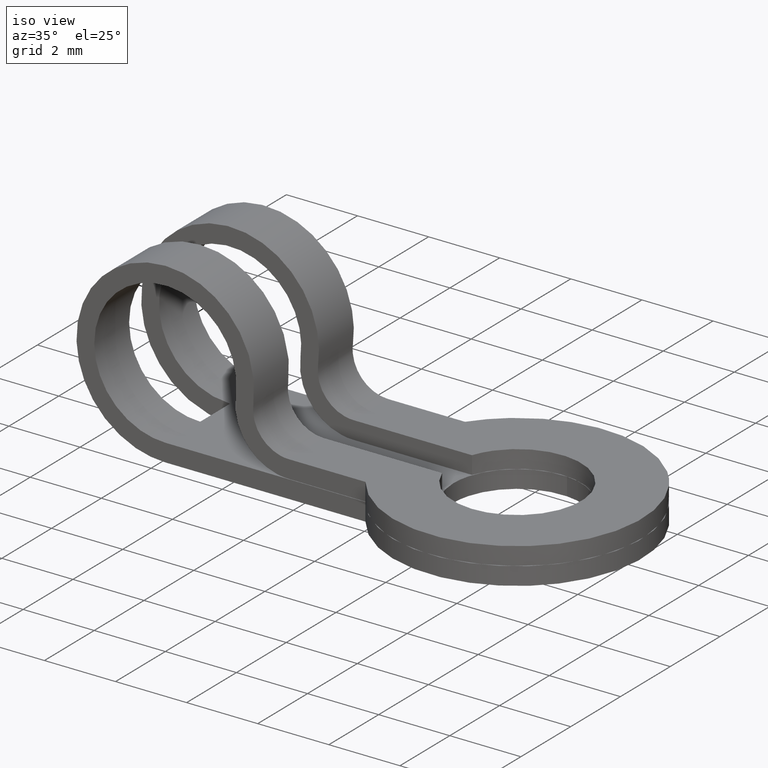
[diagram: clean part render]
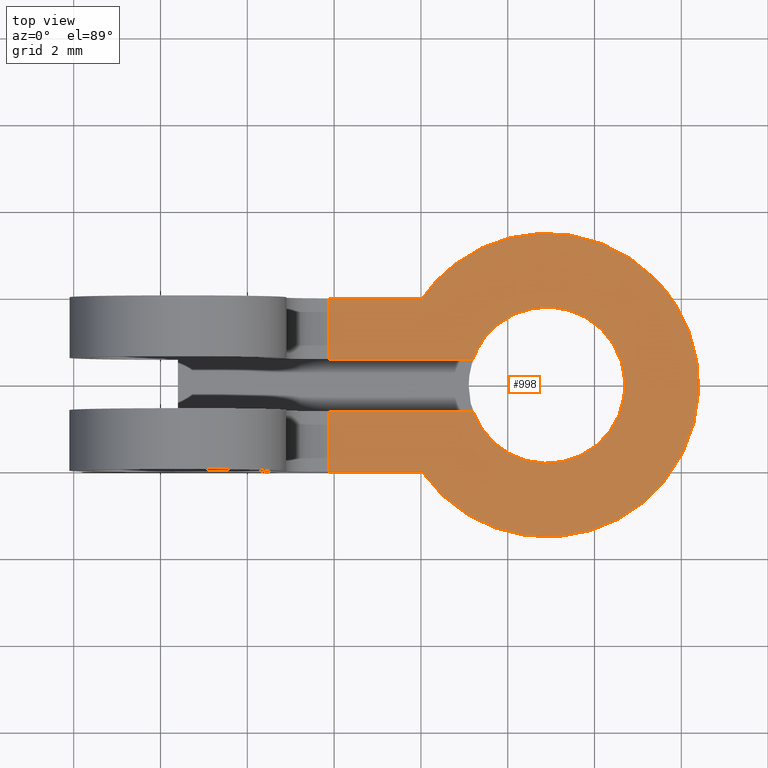
[diagram: tour spotlight — one face highlighted and labeled with its STEP entity id]
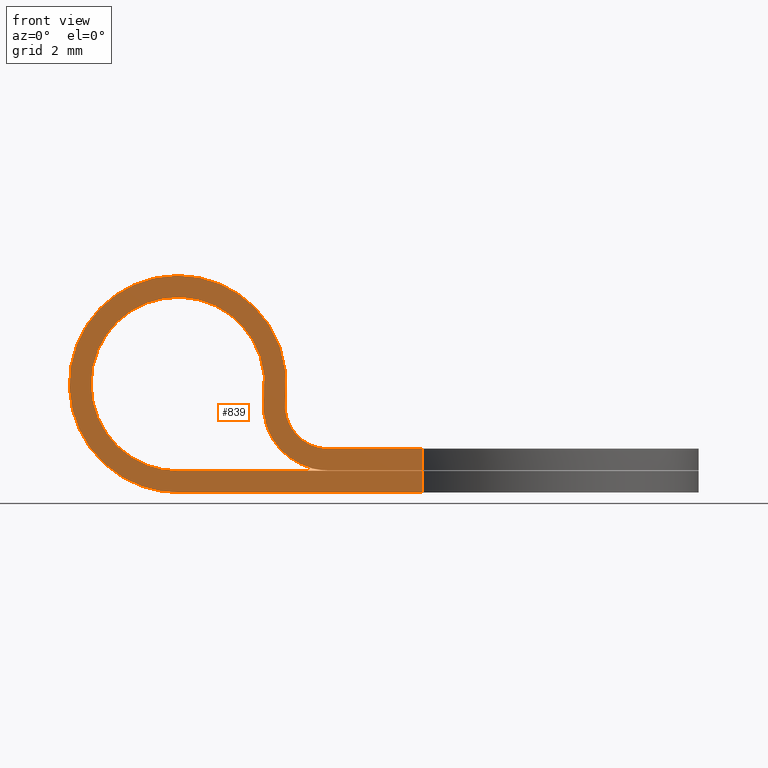
[diagram: tour spotlight — one face highlighted and labeled with its STEP entity id]
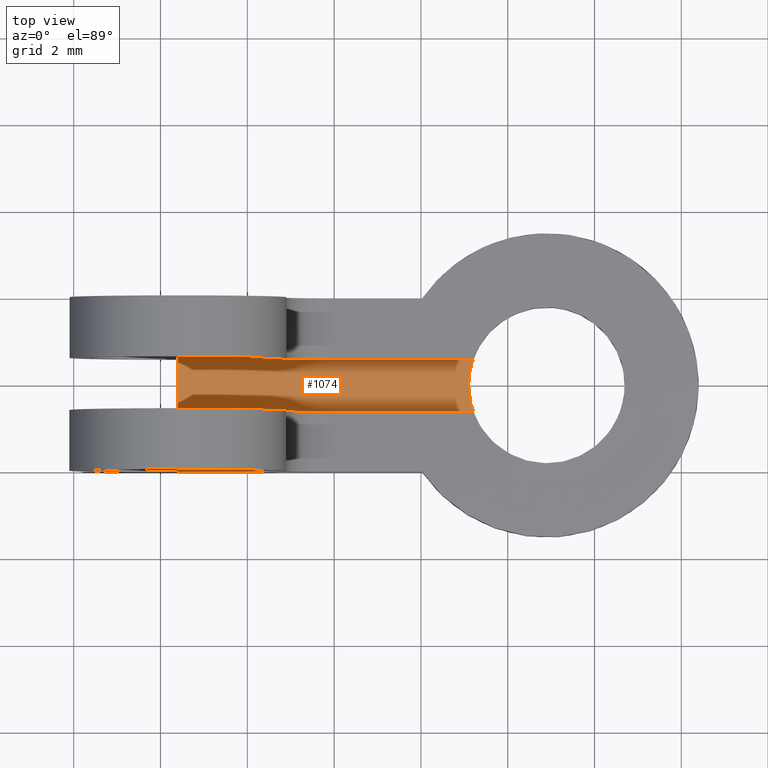
[diagram: tour spotlight — one face highlighted and labeled with its STEP entity id]
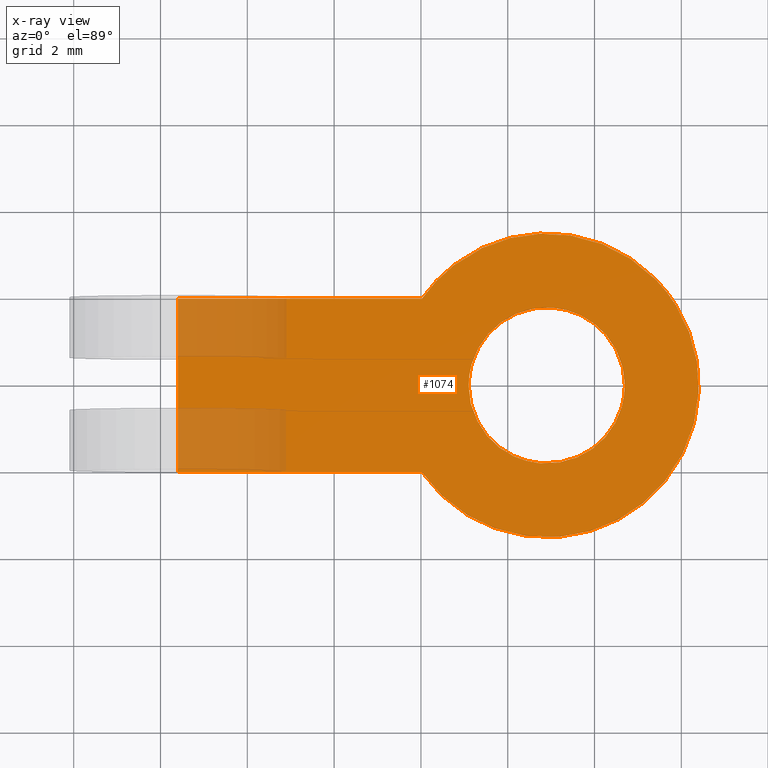
[diagram: x-ray of the same camera — body ghosted, this tour face saturated]
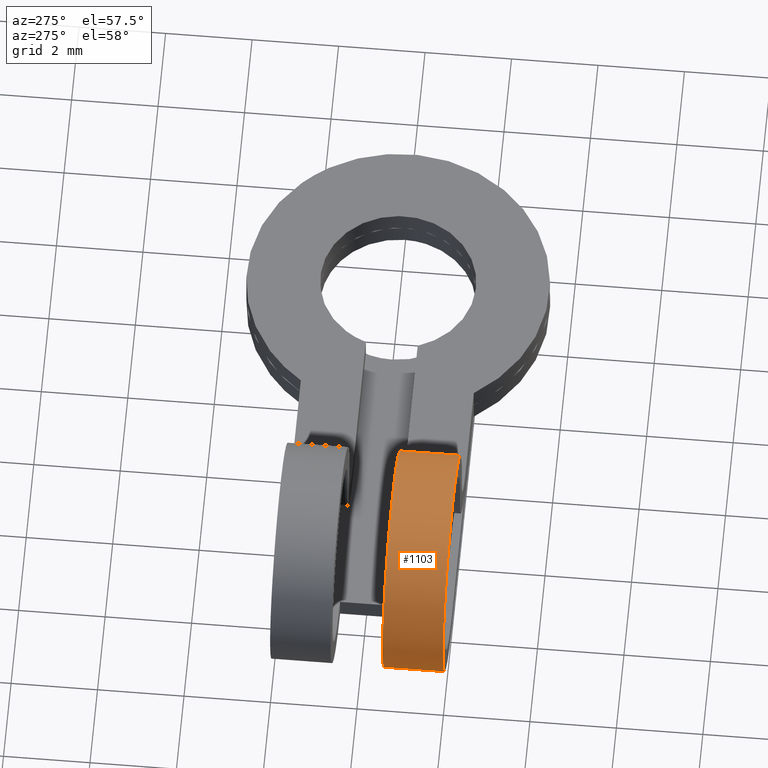
[diagram: tour spotlight — one face highlighted and labeled with its STEP entity id]
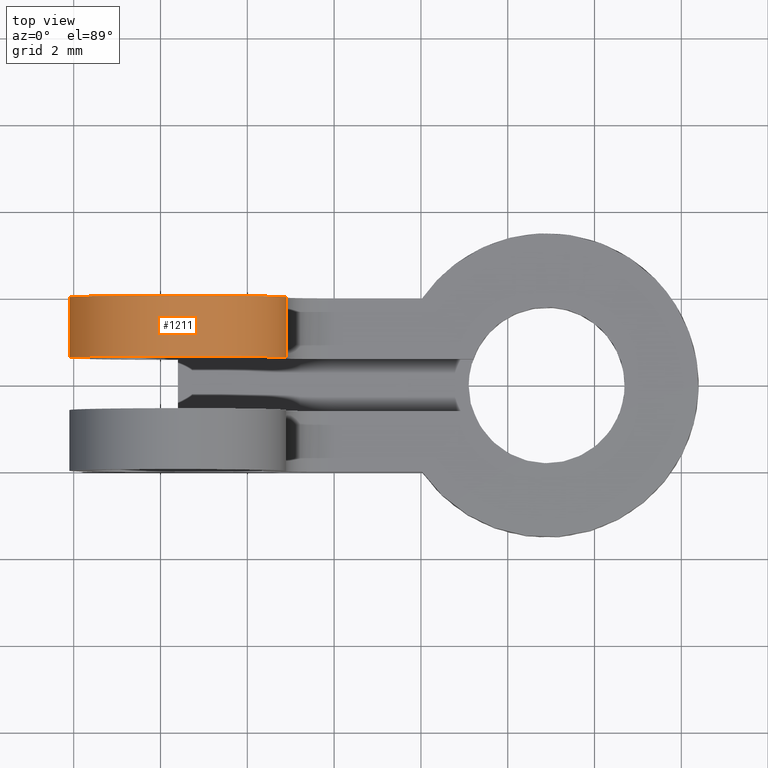
[diagram: tour spotlight — one face highlighted and labeled with its STEP entity id]
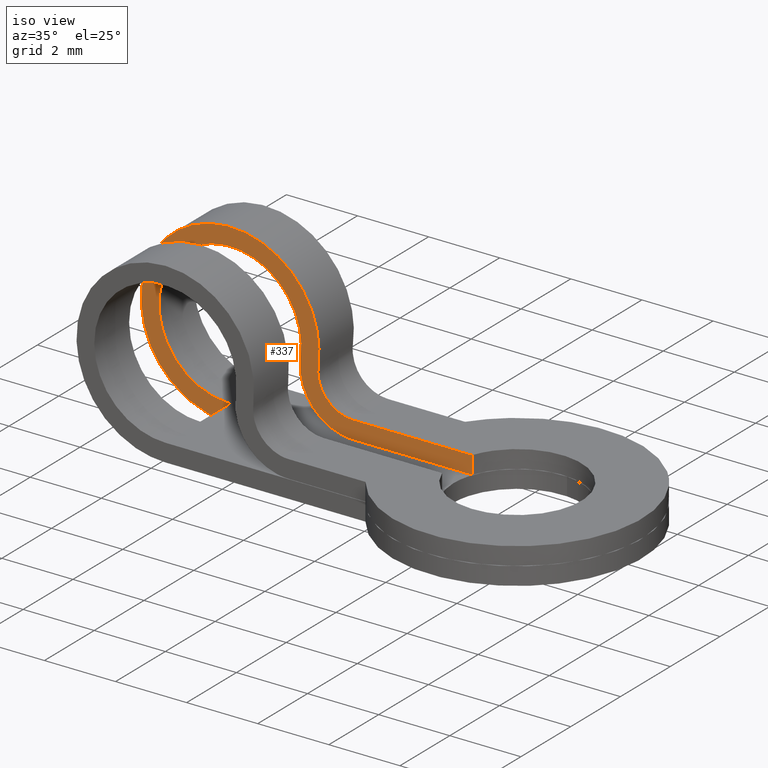
[diagram: tour spotlight — one face highlighted and labeled with its STEP entity id]
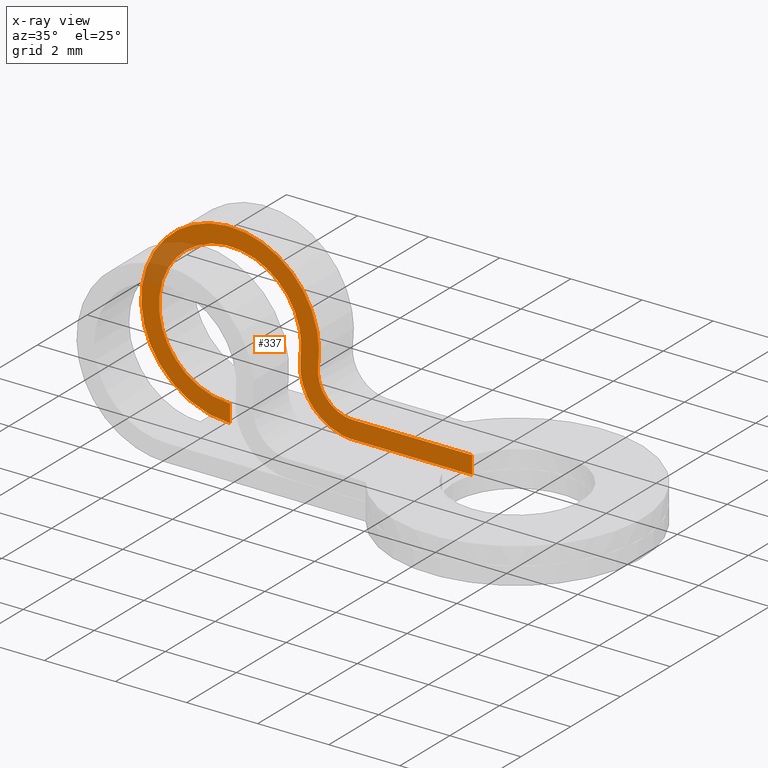
[diagram: x-ray of the same camera — body ghosted, this tour face saturated]
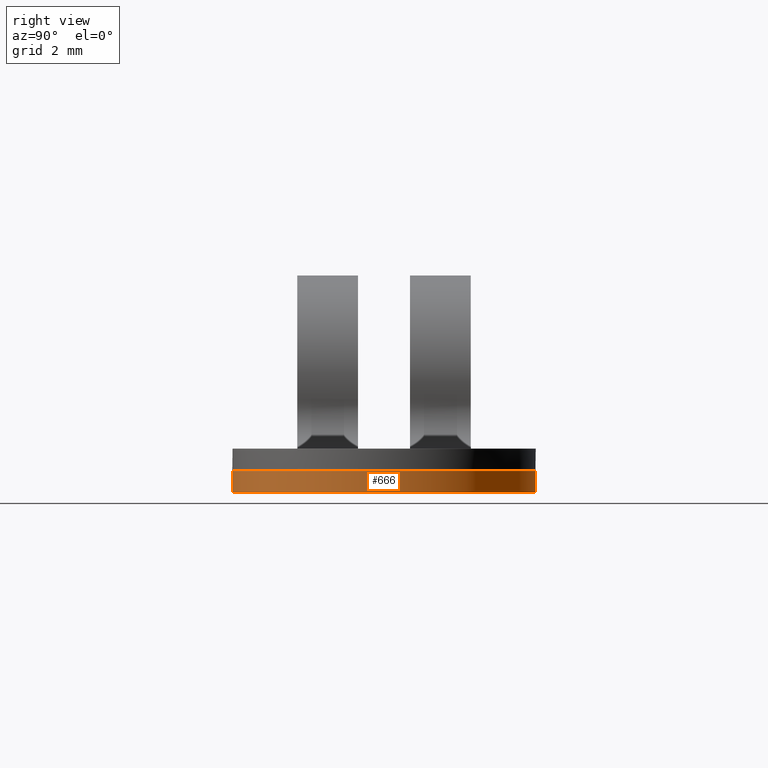
[diagram: tour spotlight — one face highlighted and labeled with its STEP entity id]
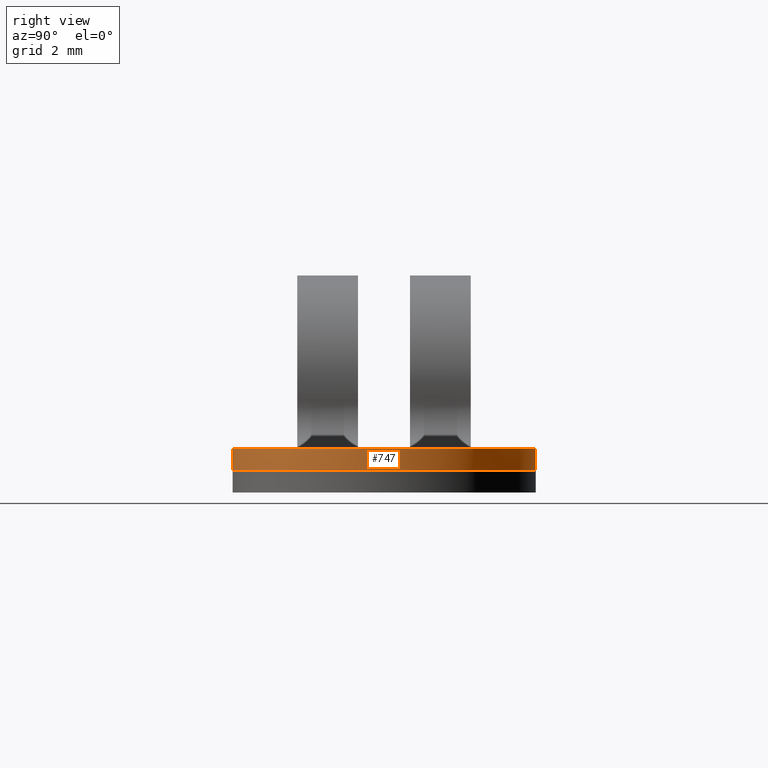
[diagram: tour spotlight — one face highlighted and labeled with its STEP entity id]
A machine part: a face-by-face anatomy tour. The part has 22 B-rep faces; the first image is the clean iso view, then the 8 largest visible faces are spotlighted one at a time (largest first), each with its STEP entity span.

Face 1 — top view, entity #998. In plain terms, the highlighted face is a freeform B-spline surface patch.
Definition (entity closure, byte-faithful):
#285=CARTESIAN_POINT('',(7.202943725152349,0.600000000000156,-1.490000000000000));
#286=VERTEX_POINT('',#285);
#292=CARTESIAN_POINT('',(3.865530262456245,0.600000000000156,-1.490000000000000));
#293=VERTEX_POINT('',#292);
#294=CARTESIAN_POINT('',(3.865530262456245,0.600000000000156,-1.490000000000000));
#295=CARTESIAN_POINT('',(7.202943725152349,0.600000000000156,-1.490000000000000));
#296=QUASI_UNIFORM_CURVE('',1,(#294,#295),.UNSPECIFIED.,.F.,.U.);
#297=EDGE_CURVE('',#293,#286,#296,.T.);
#393=CARTESIAN_POINT('',(3.865530262456245,-0.600000000000045,-1.490000000000000));
#394=VERTEX_POINT('',#393);
#410=CARTESIAN_POINT('',(7.202943725152309,-0.600000000000045,-1.490000000000000));
#411=VERTEX_POINT('',#410);
#412=CARTESIAN_POINT('',(7.202943725152309,-0.600000000000045,-1.490000000000000));
#413=CARTESIAN_POINT('',(3.865530262456245,-0.600000000000045,-1.490000000000000));
#414=QUASI_UNIFORM_CURVE('',1,(#412,#413),.UNSPECIFIED.,.F.,.U.);
#415=EDGE_CURVE('',#411,#394,#414,.T.);
#517=CARTESIAN_POINT('',(7.202943725152303,-0.600000000000048,-1.490000000000000));
#518=CARTESIAN_POINT('',(7.708767123412788,-2.030684619971169,-1.490000000000000));
#519=CARTESIAN_POINT('',(9.204383561706369,-1.774077407376280,-1.490000000000000));
#520=CARTESIAN_POINT('',(10.699999999999998,-1.517470194781383,-1.490000000000000));
#521=CARTESIAN_POINT('',(10.699999999999999,0.0,-1.490000000000000));
#522=CARTESIAN_POINT('',(10.699999999999998,1.517470194781283,-1.490000000000000));
#523=CARTESIAN_POINT('',(9.204383561706484,1.774077407376261,-1.490000000000000));
#524=CARTESIAN_POINT('',(7.708767123412920,2.030684619971247,-1.490000000000000));
#525=CARTESIAN_POINT('',(7.202943725152342,0.600000000000158,-1.490000000000000));
#533=(BOUNDED_CURVE()B_SPLINE_CURVE(2,(#517,#518,#519,#520,#521,#522,#523,#524,#525),.UNSPECIFIED.,.F.,.U.)B_SPLINE_CURVE_WITH_KNOTS((3,2,2,2,3),(0.0,0.250000000000000,0.500000000000000,0.750000000000000,1.0),.UNSPECIFIED.)CURVE()GEOMETRIC_REPRESENTATION_ITEM()RATIONAL_B_SPLINE_CURVE((1.0,0.764559343257864,1.0,0.764559343257864,1.0,0.764559343257864,1.0,0.764559343257864,1.0))REPRESENTATION_ITEM(''));
#534=EDGE_CURVE('',#411,#286,#533,.T.);
#553=CARTESIAN_POINT('',(3.865530262456245,-2.0,-1.490000000000000));
#554=VERTEX_POINT('',#553);
#555=CARTESIAN_POINT('',(3.865530262456245,-0.600000000000045,-1.490000000000000));
#556=CARTESIAN_POINT('',(3.865530262456245,-2.0,-1.490000000000000));
#557=QUASI_UNIFORM_CURVE('',1,(#555,#556),.UNSPECIFIED.,.F.,.U.);
#558=EDGE_CURVE('',#394,#554,#557,.T.);
#689=CARTESIAN_POINT('',(6.027719000000000,-2.0,-1.490000000000000));
#690=VERTEX_POINT('',#689);
#691=CARTESIAN_POINT('',(6.027719000000000,2.000000000000200,-1.490000000000000));
#692=VERTEX_POINT('',#691);
#693=CARTESIAN_POINT('',(6.027719000000000,-2.0,-1.490000000000000));
#694=CARTESIAN_POINT('',(7.496194522466252,-4.108937635332173,-1.490000000000000));
#695=CARTESIAN_POINT('',(9.948097261233096,-3.339384992928441,-1.490000000000000));
#696=CARTESIAN_POINT('',(12.400000000000000,-2.569832350524688,-1.490000000000000));
#697=CARTESIAN_POINT('',(12.400000000000000,0.0,-1.490000000000000));
#698=CARTESIAN_POINT('',(12.400000000000000,2.569832350524561,-1.490000000000000));
#699=CARTESIAN_POINT('',(9.948097261233253,3.339384992928392,-1.490000000000000));
#700=CARTESIAN_POINT('',(7.496194522466445,4.108937635332241,-1.490000000000000));
#701=CARTESIAN_POINT('',(6.027719000000000,2.000000000000200,-1.490000000000000));
#709=(BOUNDED_CURVE()B_SPLINE_CURVE(2,(#693,#694,#695,#696,#697,#698,#699,#700,#701),.UNSPECIFIED.,.F.,.U.)B_SPLINE_CURVE_WITH_KNOTS((3,2,2,2,3),(0.0,0.250000000000000,0.500000000000000,0.750000000000000,1.0),.UNSPECIFIED.)CURVE()GEOMETRIC_REPRESENTATION_ITEM()RATIONAL_B_SPLINE_CURVE((1.0,0.806057181703735,1.0,0.806057181703735,1.0,0.806057181703735,1.0,0.806057181703735,1.0))REPRESENTATION_ITEM(''));
#710=EDGE_CURVE('',#690,#692,#709,.T.);
#831=CARTESIAN_POINT('',(3.865530262456245,-2.0,-1.490000000000000));
#832=CARTESIAN_POINT('',(6.027719000000000,-2.0,-1.490000000000000));
#833=QUASI_UNIFORM_CURVE('',1,(#831,#832),.UNSPECIFIED.,.F.,.U.);
#834=EDGE_CURVE('',#554,#690,#833,.T.);
#868=CARTESIAN_POINT('',(3.865530262456245,2.000000000000225,-1.490000000000000));
#869=VERTEX_POINT('',#868);
#885=CARTESIAN_POINT('',(6.027719000000000,2.000000000000200,-1.490000000000000));
#886=CARTESIAN_POINT('',(3.865530262456245,2.000000000000225,-1.490000000000000));
#887=QUASI_UNIFORM_CURVE('',1,(#885,#886),.UNSPECIFIED.,.F.,.U.);
#888=EDGE_CURVE('',#692,#869,#887,.T.);
#979=CARTESIAN_POINT('',(12.826296346271359,-3.844686096304185,-1.490000000000000));
#980=CARTESIAN_POINT('',(3.439233305752026,-3.844686096304185,-1.490000000000000));
#981=CARTESIAN_POINT('',(12.826296346271359,3.844685726570386,-1.490000000000000));
#982=CARTESIAN_POINT('',(3.439233305752026,3.844685726570386,-1.490000000000000));
#983=B_SPLINE_SURFACE_WITH_KNOTS('',1,1,((#979,#981),(#980,#982)),.UNSPECIFIED.,.F.,.F.,.U.,(2,2),(2,2),(0.0,9.387063040519337),(0.0,7.689371822874571),.UNSPECIFIED.);
#984=CARTESIAN_POINT('',(3.865530262456245,2.000000000000225,-1.490000000000000));
#985=CARTESIAN_POINT('',(3.865530262456245,0.600000000000156,-1.490000000000000));
#986=QUASI_UNIFORM_CURVE('',1,(#984,#985),.UNSPECIFIED.,.F.,.U.);
#987=EDGE_CURVE('',#869,#293,#986,.T.);
#988=ORIENTED_EDGE('',*,*,#987,.T.);
#989=ORIENTED_EDGE('',*,*,#297,.T.);
#990=ORIENTED_EDGE('',*,*,#534,.F.);
#991=ORIENTED_EDGE('',*,*,#415,.T.);
#992=ORIENTED_EDGE('',*,*,#558,.T.);
#993=ORIENTED_EDGE('',*,*,#834,.T.);
#994=ORIENTED_EDGE('',*,*,#710,.T.);
#995=ORIENTED_EDGE('',*,*,#888,.T.);
#996=EDGE_LOOP('',(#988,#989,#990,#991,#992,#993,#994,#995));
#997=FACE_OUTER_BOUND('',#996,.T.);
#998=ADVANCED_FACE('',(#997),#983,.F.);

Face 2 — front view, entity #839. In plain terms, the highlighted face is a freeform B-spline surface patch.
Definition (entity closure, byte-faithful):
#553=CARTESIAN_POINT('',(3.865530262456245,-2.0,-1.490000000000000));
#554=VERTEX_POINT('',#553);
#561=CARTESIAN_POINT('',(2.875378758897320,-2.0,-0.350000000000000));
#562=VERTEX_POINT('',#561);
#568=CARTESIAN_POINT('',(2.875378758897320,-2.0,-0.350000000000000));
#569=CARTESIAN_POINT('',(2.811541781976854,-2.000000000000000,-0.801487704860400));
#570=CARTESIAN_POINT('',(3.110546818929170,-2.0,-1.145743852430200));
#571=CARTESIAN_POINT('',(3.409551855881486,-2.000000000000000,-1.490000000000001));
#572=CARTESIAN_POINT('',(3.865530262456245,-2.0,-1.490000000000000));
#580=(BOUNDED_CURVE()B_SPLINE_CURVE(2,(#568,#569,#570,#571,#572),.UNSPECIFIED.,.F.,.U.)B_SPLINE_CURVE_WITH_KNOTS((3,2,3),(0.0,0.500000000000000,1.0),.UNSPECIFIED.)CURVE()GEOMETRIC_REPRESENTATION_ITEM()RATIONAL_B_SPLINE_CURVE((1.0,0.909874676103857,1.0,0.909874676103857,1.0))REPRESENTATION_ITEM(''));
#581=EDGE_CURVE('',#562,#554,#580,.T.);
#608=CARTESIAN_POINT('',(6.027719000000000,-2.0,-2.0));
#609=VERTEX_POINT('',#608);
#631=CARTESIAN_POINT('',(6.027719000000000,-2.0,-2.499999999999945));
#632=VERTEX_POINT('',#631);
#633=CARTESIAN_POINT('',(6.027719000000000,-2.0,-2.0));
#634=CARTESIAN_POINT('',(6.027719000000000,-2.0,-2.499999999999945));
#635=QUASI_UNIFORM_CURVE('',1,(#633,#634),.UNSPECIFIED.,.F.,.U.);
#636=EDGE_CURVE('',#609,#632,#635,.T.);
#689=CARTESIAN_POINT('',(6.027719000000000,-2.0,-1.490000000000000));
#690=VERTEX_POINT('',#689);
#712=CARTESIAN_POINT('',(6.027719000000000,-2.0,-1.990000000000045));
#713=VERTEX_POINT('',#712);
#714=CARTESIAN_POINT('',(6.027719000000000,-2.0,-1.490000000000000));
#715=CARTESIAN_POINT('',(6.027719000000000,-2.0,-1.990000000000045));
#716=QUASI_UNIFORM_CURVE('',1,(#714,#715),.UNSPECIFIED.,.F.,.U.);
#717=EDGE_CURVE('',#690,#713,#716,.T.);
#748=CARTESIAN_POINT('',(-2.503103230174793,-2.0,-2.749460361022603));
#749=CARTESIAN_POINT('',(-2.503103230174793,-2.0,2.743662111008235));
#750=CARTESIAN_POINT('',(6.433561928809147,-2.0,-2.749460361022603));
#751=CARTESIAN_POINT('',(6.433561928809147,-2.0,2.743662111008235));
#752=B_SPLINE_SURFACE_WITH_KNOTS('',1,1,((#748,#750),(#749,#751)),.UNSPECIFIED.,.F.,.F.,.U.,(2,2),(2,2),(0.0,5.493122472030837),(0.0,8.936665158983940),.UNSPECIFIED.);
#753=CARTESIAN_POINT('',(0.400000000000006,-2.0,-2.499999999999945));
#754=VERTEX_POINT('',#753);
#755=CARTESIAN_POINT('',(2.875378758897318,-2.0,-0.350000000000001));
#756=CARTESIAN_POINT('',(3.118236519196397,-2.000000000000000,1.367614117936326));
#757=CARTESIAN_POINT('',(1.594272687481421,-2.0,2.196295232416607));
#758=CARTESIAN_POINT('',(0.070308855766445,-2.000000000000000,3.024976346896888));
#759=CARTESIAN_POINT('',(-1.239359631075494,-2.0,1.887458608817688));
#760=CARTESIAN_POINT('',(-2.549028117917432,-2.000000000000000,0.749940870738490));
#761=CARTESIAN_POINT('',(-1.941863202883996,-2.0,-0.875029564630753));
#762=CARTESIAN_POINT('',(-1.334698287850559,-2.000000000000000,-2.500000000000000));
#763=CARTESIAN_POINT('',(0.400000000000006,-2.0,-2.499999999999945));
#771=(BOUNDED_CURVE()B_SPLINE_CURVE(2,(#755,#756,#757,#758,#759,#760,#761,#762,#763),.UNSPECIFIED.,.F.,.U.)B_SPLINE_CURVE_WITH_KNOTS((3,2,2,2,3),(0.0,0.250000000000000,0.500000000000000,0.750000000000000,1.0),.UNSPECIFIED.)CURVE()GEOMETRIC_REPRESENTATION_ITEM()RATIONAL_B_SPLINE_CURVE((1.0,0.821587434742129,1.0,0.821587434742129,1.0,0.821587434742129,1.0,0.821587434742129,1.0))REPRESENTATION_ITEM(''));
#772=EDGE_CURVE('',#562,#754,#771,.T.);
#773=ORIENTED_EDGE('',*,*,#772,.T.);
#774=CARTESIAN_POINT('',(0.400000000000006,-2.0,-2.499999999999945));
#775=CARTESIAN_POINT('',(6.027719000000000,-2.0,-2.499999999999945));
#776=QUASI_UNIFORM_CURVE('',1,(#774,#775),.UNSPECIFIED.,.F.,.U.);
#777=EDGE_CURVE('',#754,#632,#776,.T.);
#778=ORIENTED_EDGE('',*,*,#777,.T.);
#779=ORIENTED_EDGE('',*,*,#636,.F.);
#780=CARTESIAN_POINT('',(0.400000000000006,-2.0,-2.0));
#781=VERTEX_POINT('',#780);
#782=CARTESIAN_POINT('',(0.400000000000006,-2.0,-2.0));
#783=CARTESIAN_POINT('',(6.027719000000000,-2.0,-2.0));
#784=QUASI_UNIFORM_CURVE('',1,(#782,#783),.UNSPECIFIED.,.F.,.U.);
#785=EDGE_CURVE('',#781,#609,#784,.T.);
#786=ORIENTED_EDGE('',*,*,#785,.F.);
#787=CARTESIAN_POINT('',(2.380303007117855,-2.0,-0.280000000000000));
#788=VERTEX_POINT('',#787);
#789=CARTESIAN_POINT('',(2.380303007117856,-2.0,-0.280000000000001));
#790=CARTESIAN_POINT('',(2.574589215357118,-2.000000000000000,1.094091294349061));
#791=CARTESIAN_POINT('',(1.355418149985138,-2.0,1.757036185933286));
#792=CARTESIAN_POINT('',(0.136247084613157,-2.000000000000000,2.419981077517511));
#793=CARTESIAN_POINT('',(-0.911487704860394,-2.0,1.509966887054151));
#794=CARTESIAN_POINT('',(-1.959222494333944,-2.000000000000000,0.599952696590792));
#795=CARTESIAN_POINT('',(-1.473490562307196,-2.0,-0.700023651704603));
#796=CARTESIAN_POINT('',(-0.987758630280446,-2.000000000000000,-2.000000000000000));
#797=CARTESIAN_POINT('',(0.400000000000006,-2.0,-2.0));
#805=(BOUNDED_CURVE()B_SPLINE_CURVE(2,(#789,#790,#791,#792,#793,#794,#795,#796,#797),.UNSPECIFIED.,.F.,.U.)B_SPLINE_CURVE_WITH_KNOTS((3,2,2,2,3),(0.0,0.250000000000000,0.500000000000000,0.750000000000000,1.0),.UNSPECIFIED.)CURVE()GEOMETRIC_REPRESENTATION_ITEM()RATIONAL_B_SPLINE_CURVE((1.0,0.821587434742129,1.0,0.821587434742129,1.0,0.821587434742129,1.0,0.821587434742129,1.0))REPRESENTATION_ITEM(''));
#806=EDGE_CURVE('',#788,#781,#805,.T.);
#807=ORIENTED_EDGE('',*,*,#806,.F.);
#808=CARTESIAN_POINT('',(3.865530262456245,-2.0,-1.990000000000000));
#809=VERTEX_POINT('',#808);
#810=CARTESIAN_POINT('',(2.380303007117858,-2.0,-0.280000000000000));
#811=CARTESIAN_POINT('',(2.284547541737157,-2.000000000000000,-0.957231557290600));
#812=CARTESIAN_POINT('',(2.733055097165632,-2.0,-1.473615778645300));
#813=CARTESIAN_POINT('',(3.181562652594107,-2.000000000000000,-1.990000000000000));
#814=CARTESIAN_POINT('',(3.865530262456245,-2.0,-1.990000000000000));
#822=(BOUNDED_CURVE()B_SPLINE_CURVE(2,(#810,#811,#812,#813,#814),.UNSPECIFIED.,.F.,.U.)B_SPLINE_CURVE_WITH_KNOTS((3,2,3),(0.0,0.500000000000000,1.0),.UNSPECIFIED.)CURVE()GEOMETRIC_REPRESENTATION_ITEM()RATIONAL_B_SPLINE_CURVE((1.0,0.909874676103858,1.0,0.909874676103858,1.0))REPRESENTATION_ITEM(''));
#823=EDGE_CURVE('',#788,#809,#822,.T.);
#824=ORIENTED_EDGE('',*,*,#823,.T.);
#825=CARTESIAN_POINT('',(6.027719000000000,-2.0,-1.990000000000045));
#826=CARTESIAN_POINT('',(3.865530262456245,-2.0,-1.990000000000000));
#827=QUASI_UNIFORM_CURVE('',1,(#825,#826),.UNSPECIFIED.,.F.,.U.);
#828=EDGE_CURVE('',#713,#809,#827,.T.);
#829=ORIENTED_EDGE('',*,*,#828,.F.);
#830=ORIENTED_EDGE('',*,*,#717,.F.);
#831=CARTESIAN_POINT('',(3.865530262456245,-2.0,-1.490000000000000));
#832=CARTESIAN_POINT('',(6.027719000000000,-2.0,-1.490000000000000));
#833=QUASI_UNIFORM_CURVE('',1,(#831,#832),.UNSPECIFIED.,.F.,.U.);
#834=EDGE_CURVE('',#554,#690,#833,.T.);
#835=ORIENTED_EDGE('',*,*,#834,.F.);
#836=ORIENTED_EDGE('',*,*,#581,.F.);
#837=EDGE_LOOP('',(#773,#778,#779,#786,#807,#824,#829,#830,#835,#836));
#838=FACE_OUTER_BOUND('',#837,.T.);
#839=ADVANCED_FACE('',(#838),#752,.F.);

Face 3 — top view, entity #1074. An x-ray twin of the same camera follows (body ghosted, this face saturated) — the face is partly hidden behind the body. In plain terms, the highlighted face is a freeform B-spline surface patch.
Definition (entity closure, byte-faithful):
#96=CARTESIAN_POINT('',(9.041224085594362,1.794451380685131,-2.0));
#97=VERTEX_POINT('',#96);
#103=CARTESIAN_POINT('',(7.100000000000001,0.0,-2.0));
#104=VERTEX_POINT('',#103);
#105=CARTESIAN_POINT('',(9.041224085594362,1.794451380685131,-2.0));
#106=CARTESIAN_POINT('',(8.970721043950107,1.800000000000000,-2.0));
#107=CARTESIAN_POINT('',(8.900000000000000,1.800000000000000,-2.0));
#108=CARTESIAN_POINT('',(7.100000000000001,1.800000000000001,-2.0));
#109=CARTESIAN_POINT('',(7.100000000000001,0.0,-2.0));
#117=(BOUNDED_CURVE()B_SPLINE_CURVE(2,(#105,#106,#107,#108,#109),.UNSPECIFIED.,.F.,.U.)B_SPLINE_CURVE_WITH_KNOTS((3,2,3),(0.736331519083475,0.750000000000000,1.0),.UNSPECIFIED.)CURVE()GEOMETRIC_REPRESENTATION_ITEM()RATIONAL_B_SPLINE_CURVE((0.969723812062226,0.983986378512276,1.0,0.707106781186547,1.0))REPRESENTATION_ITEM(''));
#118=EDGE_CURVE('',#97,#104,#117,.T.);
#120=CARTESIAN_POINT('',(8.758775914405639,-1.794451380685131,-2.0));
#121=VERTEX_POINT('',#120);
#122=CARTESIAN_POINT('',(7.100000000000001,0.0,-2.0));
#123=CARTESIAN_POINT('',(7.099999999999999,-1.663905011897021,-2.0));
#124=CARTESIAN_POINT('',(8.758775914405639,-1.794451380685132,-2.000000000000000));
#132=(BOUNDED_CURVE()B_SPLINE_CURVE(2,(#122,#123,#124),.UNSPECIFIED.,.F.,.U.)B_SPLINE_CURVE_WITH_KNOTS((3,3),(0.0,0.236331519083475),.UNSPECIFIED.)CURVE()GEOMETRIC_REPRESENTATION_ITEM()RATIONAL_B_SPLINE_CURVE((1.0,0.723120402674272,0.969723812062226))REPRESENTATION_ITEM(''));
#133=EDGE_CURVE('',#104,#121,#132,.T.);
#179=CARTESIAN_POINT('',(10.699999999999999,0.0,-2.0));
#180=VERTEX_POINT('',#179);
#181=CARTESIAN_POINT('',(8.758775914405639,-1.794451380685132,-2.000000000000000));
#182=CARTESIAN_POINT('',(8.829278956049892,-1.800000000000000,-2.000000000000000));
#183=CARTESIAN_POINT('',(8.900000000000000,-1.800000000000000,-2.0));
#184=CARTESIAN_POINT('',(10.699999999999999,-1.800000000000001,-2.0));
#185=CARTESIAN_POINT('',(10.699999999999999,0.0,-2.0));
#193=(BOUNDED_CURVE()B_SPLINE_CURVE(2,(#181,#182,#183,#184,#185),.UNSPECIFIED.,.F.,.U.)B_SPLINE_CURVE_WITH_KNOTS((3,2,3),(0.236331519083475,0.250000000000000,0.500000000000000),.UNSPECIFIED.)CURVE()GEOMETRIC_REPRESENTATION_ITEM()RATIONAL_B_SPLINE_CURVE((0.969723812062226,0.983986378512275,1.0,0.707106781186547,1.0))REPRESENTATION_ITEM(''));
#194=EDGE_CURVE('',#121,#180,#193,.T.);
#196=CARTESIAN_POINT('',(10.699999999999999,0.0,-2.0));
#197=CARTESIAN_POINT('',(10.699999999999999,1.663905011897023,-2.000000000000000));
#198=CARTESIAN_POINT('',(9.041224085594362,1.794451380685131,-2.000000000000000));
#206=(BOUNDED_CURVE()B_SPLINE_CURVE(2,(#196,#197,#198),.UNSPECIFIED.,.F.,.U.)B_SPLINE_CURVE_WITH_KNOTS((3,3),(0.500000000000000,0.736331519083476),.UNSPECIFIED.)CURVE()GEOMETRIC_REPRESENTATION_ITEM()RATIONAL_B_SPLINE_CURVE((1.0,0.723120402674272,0.969723812062227))REPRESENTATION_ITEM(''));
#207=EDGE_CURVE('',#180,#97,#206,.T.);
#231=CARTESIAN_POINT('',(0.400000000000006,0.600000000000045,-2.0));
#232=VERTEX_POINT('',#231);
#343=CARTESIAN_POINT('',(0.400000000000006,-0.600000000000000,-2.0));
#344=VERTEX_POINT('',#343);
#345=CARTESIAN_POINT('',(0.400000000000006,-0.600000000000000,-2.0));
#346=CARTESIAN_POINT('',(0.400000000000006,0.600000000000045,-2.0));
#347=QUASI_UNIFORM_CURVE('',1,(#345,#346),.UNSPECIFIED.,.F.,.U.);
#348=EDGE_CURVE('',#344,#232,#347,.T.);
#608=CARTESIAN_POINT('',(6.027719000000000,-2.0,-2.0));
#609=VERTEX_POINT('',#608);
#610=CARTESIAN_POINT('',(6.027719000000000,2.000000000000200,-2.0));
#611=VERTEX_POINT('',#610);
#612=CARTESIAN_POINT('',(6.027719000000000,-2.0,-2.0));
#613=CARTESIAN_POINT('',(7.496194522466252,-4.108937635332173,-2.000000000000000));
#614=CARTESIAN_POINT('',(9.948097261233096,-3.339384992928441,-2.0));
#615=CARTESIAN_POINT('',(12.400000000000000,-2.569832350524688,-2.000000000000000));
#616=CARTESIAN_POINT('',(12.400000000000000,0.0,-2.0));
#617=CARTESIAN_POINT('',(12.400000000000000,2.569832350524561,-2.000000000000000));
#618=CARTESIAN_POINT('',(9.948097261233253,3.339384992928392,-2.0));
#619=CARTESIAN_POINT('',(7.496194522466445,4.108937635332241,-2.000000000000000));
#620=CARTESIAN_POINT('',(6.027719000000000,2.000000000000200,-2.0));
#628=(BOUNDED_CURVE()B_SPLINE_CURVE(2,(#612,#613,#614,#615,#616,#617,#618,#619,#620),.UNSPECIFIED.,.F.,.U.)B_SPLINE_CURVE_WITH_KNOTS((3,2,2,2,3),(0.0,0.250000000000000,0.500000000000000,0.750000000000000,1.0),.UNSPECIFIED.)CURVE()GEOMETRIC_REPRESENTATION_ITEM()RATIONAL_B_SPLINE_CURVE((1.0,0.806057181703735,1.0,0.806057181703735,1.0,0.806057181703735,1.0,0.806057181703735,1.0))REPRESENTATION_ITEM(''));
#629=EDGE_CURVE('',#609,#611,#628,.T.);
#780=CARTESIAN_POINT('',(0.400000000000006,-2.0,-2.0));
#781=VERTEX_POINT('',#780);
#782=CARTESIAN_POINT('',(0.400000000000006,-2.0,-2.0));
#783=CARTESIAN_POINT('',(6.027719000000000,-2.0,-2.0));
#784=QUASI_UNIFORM_CURVE('',1,(#782,#783),.UNSPECIFIED.,.F.,.U.);
#785=EDGE_CURVE('',#781,#609,#784,.T.);
#915=CARTESIAN_POINT('',(0.400000000000006,2.000000000000225,-2.0));
#916=VERTEX_POINT('',#915);
#936=CARTESIAN_POINT('',(6.027719000000000,2.000000000000200,-2.0));
#937=CARTESIAN_POINT('',(0.400000000000006,2.000000000000225,-2.0));
#938=QUASI_UNIFORM_CURVE('',1,(#936,#937),.UNSPECIFIED.,.F.,.U.);
#939=EDGE_CURVE('',#611,#916,#938,.T.);
#1047=CARTESIAN_POINT('',(12.999399638799421,-3.844686081796383,-2.0));
#1048=CARTESIAN_POINT('',(-0.199400282529587,-3.844686081796383,-2.0));
#1049=CARTESIAN_POINT('',(12.999399638799421,3.844685728046397,-2.0));
#1050=CARTESIAN_POINT('',(-0.199400282529587,3.844685728046397,-2.0));
#1051=B_SPLINE_SURFACE_WITH_KNOTS('',1,1,((#1047,#1049),(#1048,#1050)),.UNSPECIFIED.,.F.,.F.,.U.,(2,2),(2,2),(0.0,13.198799921329011),(0.0,7.689371809842780),.UNSPECIFIED.);
#1052=CARTESIAN_POINT('',(0.400000000000006,2.000000000000225,-2.0));
#1053=CARTESIAN_POINT('',(0.400000000000006,0.600000000000045,-2.0));
#1054=QUASI_UNIFORM_CURVE('',1,(#1052,#1053),.UNSPECIFIED.,.F.,.U.);
#1055=EDGE_CURVE('',#916,#232,#1054,.T.);
#1056=ORIENTED_EDGE('',*,*,#1055,.T.);
#1057=ORIENTED_EDGE('',*,*,#348,.F.);
#1058=CARTESIAN_POINT('',(0.400000000000006,-0.600000000000000,-2.0));
#1059=CARTESIAN_POINT('',(0.400000000000006,-2.0,-2.0));
#1060=QUASI_UNIFORM_CURVE('',1,(#1058,#1059),.UNSPECIFIED.,.F.,.U.);
#1061=EDGE_CURVE('',#344,#781,#1060,.T.);
#1062=ORIENTED_EDGE('',*,*,#1061,.T.);
#1063=ORIENTED_EDGE('',*,*,#785,.T.);
#1064=ORIENTED_EDGE('',*,*,#629,.T.);
#1065=ORIENTED_EDGE('',*,*,#939,.T.);
#1066=EDGE_LOOP('',(#1056,#1057,#1062,#1063,#1064,#1065));
#1067=FACE_OUTER_BOUND('',#1066,.T.);
#1068=ORIENTED_EDGE('',*,*,#207,.F.);
#1069=ORIENTED_EDGE('',*,*,#194,.F.);
#1070=ORIENTED_EDGE('',*,*,#133,.F.);
#1071=ORIENTED_EDGE('',*,*,#118,.F.);
#1072=EDGE_LOOP('',(#1068,#1069,#1070,#1071));
#1073=FACE_BOUND('',#1072,.T.);
#1074=ADVANCED_FACE('',(#1067,#1073),#1051,.F.);

Face 4 — auxiliary view, entity #1103. In plain terms, the highlighted face is a freeform B-spline surface patch.
Definition (entity closure, byte-faithful):
#351=CARTESIAN_POINT('',(0.400000000000006,-0.600000000000000,-2.499999999999945));
#352=VERTEX_POINT('',#351);
#372=CARTESIAN_POINT('',(2.875378758897320,-0.600000000000045,-0.350000000000000));
#373=VERTEX_POINT('',#372);
#374=CARTESIAN_POINT('',(2.875378758897318,-0.600000000000045,-0.350000000000001));
#375=CARTESIAN_POINT('',(3.118236519196397,-0.600000000000045,1.367614117936326));
#376=CARTESIAN_POINT('',(1.594272687481421,-0.600000000000045,2.196295232416607));
#377=CARTESIAN_POINT('',(0.070308855766445,-0.600000000000045,3.024976346896888));
#378=CARTESIAN_POINT('',(-1.239359631075494,-0.600000000000045,1.887458608817688));
#379=CARTESIAN_POINT('',(-2.549028117917432,-0.600000000000045,0.749940870738490));
#380=CARTESIAN_POINT('',(-1.941863202883996,-0.600000000000045,-0.875029564630753));
#381=CARTESIAN_POINT('',(-1.334698287850559,-0.600000000000045,-2.500000000000000));
#382=CARTESIAN_POINT('',(0.400000000000006,-0.600000000000000,-2.499999999999945));
#390=(BOUNDED_CURVE()B_SPLINE_CURVE(2,(#374,#375,#376,#377,#378,#379,#380,#381,#382),.UNSPECIFIED.,.F.,.U.)B_SPLINE_CURVE_WITH_KNOTS((3,2,2,2,3),(0.0,0.250000000000000,0.500000000000000,0.750000000000000,1.0),.UNSPECIFIED.)CURVE()GEOMETRIC_REPRESENTATION_ITEM()RATIONAL_B_SPLINE_CURVE((1.0,0.821587434742129,1.0,0.821587434742129,1.0,0.821587434742129,1.0,0.821587434742129,1.0))REPRESENTATION_ITEM(''));
#391=EDGE_CURVE('',#373,#352,#390,.T.);
#561=CARTESIAN_POINT('',(2.875378758897320,-2.0,-0.350000000000000));
#562=VERTEX_POINT('',#561);
#563=CARTESIAN_POINT('',(2.875378758897320,-0.600000000000045,-0.350000000000000));
#564=CARTESIAN_POINT('',(2.875378758897320,-2.0,-0.350000000000000));
#565=QUASI_UNIFORM_CURVE('',1,(#563,#564),.UNSPECIFIED.,.F.,.U.);
#566=EDGE_CURVE('',#373,#562,#565,.T.);
#753=CARTESIAN_POINT('',(0.400000000000006,-2.0,-2.499999999999945));
#754=VERTEX_POINT('',#753);
#755=CARTESIAN_POINT('',(2.875378758897318,-2.0,-0.350000000000001));
#756=CARTESIAN_POINT('',(3.118236519196397,-2.000000000000000,1.367614117936326));
#757=CARTESIAN_POINT('',(1.594272687481421,-2.0,2.196295232416607));
#758=CARTESIAN_POINT('',(0.070308855766445,-2.000000000000000,3.024976346896888));
#759=CARTESIAN_POINT('',(-1.239359631075494,-2.0,1.887458608817688));
#760=CARTESIAN_POINT('',(-2.549028117917432,-2.000000000000000,0.749940870738490));
#761=CARTESIAN_POINT('',(-1.941863202883996,-2.0,-0.875029564630753));
#762=CARTESIAN_POINT('',(-1.334698287850559,-2.000000000000000,-2.500000000000000));
#763=CARTESIAN_POINT('',(0.400000000000006,-2.0,-2.499999999999945));
#771=(BOUNDED_CURVE()B_SPLINE_CURVE(2,(#755,#756,#757,#758,#759,#760,#761,#762,#763),.UNSPECIFIED.,.F.,.U.)B_SPLINE_CURVE_WITH_KNOTS((3,2,2,2,3),(0.0,0.250000000000000,0.500000000000000,0.750000000000000,1.0),.UNSPECIFIED.)CURVE()GEOMETRIC_REPRESENTATION_ITEM()RATIONAL_B_SPLINE_CURVE((1.0,0.821587434742129,1.0,0.821587434742129,1.0,0.821587434742129,1.0,0.821587434742129,1.0))REPRESENTATION_ITEM(''));
#772=EDGE_CURVE('',#562,#754,#771,.T.);
#1012=CARTESIAN_POINT('',(0.400000000000006,-0.600000000000000,-2.499999999999945));
#1013=CARTESIAN_POINT('',(0.400000000000006,-2.0,-2.499999999999945));
#1014=QUASI_UNIFORM_CURVE('',1,(#1012,#1013),.UNSPECIFIED.,.F.,.U.);
#1015=EDGE_CURVE('',#352,#754,#1014,.T.);
#1075=CARTESIAN_POINT('',(0.506962731272373,-0.565000000000000,-2.497710746687604));
#1076=CARTESIAN_POINT('',(0.506962731272373,-2.035875000000000,-2.497710746687604));
#1077=CARTESIAN_POINT('',(-2.218810239799886,-0.565000000000000,-2.614440084622726));
#1078=CARTESIAN_POINT('',(-2.218810239799886,-2.035874999999999,-2.614440084622726));
#1079=CARTESIAN_POINT('',(-2.097528619507322,-0.565000000000000,0.111134129509422));
#1080=CARTESIAN_POINT('',(-2.097528619507322,-2.035875000000000,0.111134129509422));
#1081=CARTESIAN_POINT('',(-1.976246999214758,-0.565000000000000,2.836708343641570));
#1082=CARTESIAN_POINT('',(-1.976246999214758,-2.035874999999999,2.836708343641570));
#1083=CARTESIAN_POINT('',(0.728385192461027,-0.565000000000000,2.478338791483589));
#1084=CARTESIAN_POINT('',(0.728385192461027,-2.035875000000000,2.478338791483589));
#1085=CARTESIAN_POINT('',(3.433017384136812,-0.565000000000000,2.119969239325607));
#1086=CARTESIAN_POINT('',(3.433017384136812,-2.035874999999999,2.119969239325607));
#1087=CARTESIAN_POINT('',(2.840287308794788,-0.565000000000000,-0.543137045813593));
#1088=CARTESIAN_POINT('',(2.840287308794788,-2.035875000000000,-0.543137045813593));
#1096=(BOUNDED_SURFACE()B_SPLINE_SURFACE(1,2,((#1075,#1077,#1079,#1081,#1083,#1085,#1087),(#1076,#1078,#1080,#1082,#1084,#1086,#1088)),.UNSPECIFIED.,.F.,.F.,.U.)B_SPLINE_SURFACE_WITH_KNOTS((2,2),(3,2,2,3),(0.0,1.0),(0.0,4.400105308918333,8.800210617836665,13.200315926755000),.UNSPECIFIED.)GEOMETRIC_REPRESENTATION_ITEM()RATIONAL_B_SPLINE_SURFACE(((1.0,0.675590207615660,1.0,0.675590207615660,1.0,0.675590207615660,1.0),(1.0,0.675590207615660,1.0,0.675590207615660,1.0,0.675590207615660,1.0)))REPRESENTATION_ITEM('')SURFACE());
#1097=ORIENTED_EDGE('',*,*,#566,.F.);
#1098=ORIENTED_EDGE('',*,*,#391,.T.);
#1099=ORIENTED_EDGE('',*,*,#1015,.T.);
#1100=ORIENTED_EDGE('',*,*,#772,.F.);
#1101=EDGE_LOOP('',(#1097,#1098,#1099,#1100));
#1102=FACE_OUTER_BOUND('',#1101,.T.);
#1103=ADVANCED_FACE('',(#1102),#1096,.T.);

Face 5 — top view, entity #1211. In plain terms, the highlighted face is a freeform B-spline surface patch.
Definition (entity closure, byte-faithful):
#233=CARTESIAN_POINT('',(0.400000000000005,0.600000000000045,-2.500000000000000));
#234=VERTEX_POINT('',#233);
#299=CARTESIAN_POINT('',(2.875378758897320,0.600000000000156,-0.350000000000000));
#300=VERTEX_POINT('',#299);
#316=CARTESIAN_POINT('',(0.400000000000006,0.600000000000045,-2.500000000000000));
#317=CARTESIAN_POINT('',(-1.334698287850557,0.600000000000045,-2.500000000000000));
#318=CARTESIAN_POINT('',(-1.941863202883995,0.600000000000045,-0.875029564630756));
#319=CARTESIAN_POINT('',(-2.549028117917433,0.600000000000045,0.749940870738488));
#320=CARTESIAN_POINT('',(-1.239359631075495,0.600000000000045,1.887458608817687));
#321=CARTESIAN_POINT('',(0.070308855766444,0.600000000000045,3.024976346896888));
#322=CARTESIAN_POINT('',(1.594272687481420,0.600000000000045,2.196295232416607));
#323=CARTESIAN_POINT('',(3.118236519196397,0.600000000000045,1.367614117936327));
#324=CARTESIAN_POINT('',(2.875378758897320,0.600000000000156,-0.350000000000000));
#332=(BOUNDED_CURVE()B_SPLINE_CURVE(2,(#316,#317,#318,#319,#320,#321,#322,#323,#324),.UNSPECIFIED.,.F.,.U.)B_SPLINE_CURVE_WITH_KNOTS((3,2,2,2,3),(0.0,0.250000000000000,0.500000000000000,0.750000000000000,1.0),.UNSPECIFIED.)CURVE()GEOMETRIC_REPRESENTATION_ITEM()RATIONAL_B_SPLINE_CURVE((1.0,0.821587434742129,1.0,0.821587434742129,1.0,0.821587434742129,1.0,0.821587434742129,1.0))REPRESENTATION_ITEM(''));
#333=EDGE_CURVE('',#234,#300,#332,.T.);
#845=CARTESIAN_POINT('',(0.400000000000006,2.000000000000200,-2.499999999999945));
#846=VERTEX_POINT('',#845);
#847=CARTESIAN_POINT('',(2.875378758897320,2.000000000000225,-0.350000000000000));
#848=VERTEX_POINT('',#847);
#849=CARTESIAN_POINT('',(0.400000000000006,2.000000000000200,-2.499999999999945));
#850=CARTESIAN_POINT('',(-1.334698287850557,2.000000000000225,-2.500000000000000));
#851=CARTESIAN_POINT('',(-1.941863202883995,2.000000000000225,-0.875029564630756));
#852=CARTESIAN_POINT('',(-2.549028117917433,2.000000000000225,0.749940870738488));
#853=CARTESIAN_POINT('',(-1.239359631075495,2.000000000000225,1.887458608817687));
#854=CARTESIAN_POINT('',(0.070308855766444,2.000000000000225,3.024976346896888));
#855=CARTESIAN_POINT('',(1.594272687481420,2.000000000000225,2.196295232416607));
#856=CARTESIAN_POINT('',(3.118236519196397,2.000000000000225,1.367614117936327));
#857=CARTESIAN_POINT('',(2.875378758897318,2.000000000000225,-0.350000000000000));
#865=(BOUNDED_CURVE()B_SPLINE_CURVE(2,(#849,#850,#851,#852,#853,#854,#855,#856,#857),.UNSPECIFIED.,.F.,.U.)B_SPLINE_CURVE_WITH_KNOTS((3,2,2,2,3),(0.0,0.250000000000000,0.500000000000000,0.750000000000000,1.0),.UNSPECIFIED.)CURVE()GEOMETRIC_REPRESENTATION_ITEM()RATIONAL_B_SPLINE_CURVE((1.0,0.821587434742129,1.0,0.821587434742129,1.0,0.821587434742129,1.0,0.821587434742129,1.0))REPRESENTATION_ITEM(''));
#866=EDGE_CURVE('',#846,#848,#865,.T.);
#1004=CARTESIAN_POINT('',(0.400000000000006,2.000000000000200,-2.499999999999945));
#1005=CARTESIAN_POINT('',(0.400000000000005,0.600000000000045,-2.500000000000000));
#1006=QUASI_UNIFORM_CURVE('',1,(#1004,#1005),.UNSPECIFIED.,.F.,.U.);
#1007=EDGE_CURVE('',#846,#234,#1006,.T.);
#1147=CARTESIAN_POINT('',(2.875378758897320,2.000000000000225,-0.350000000000000));
#1148=CARTESIAN_POINT('',(2.875378758897320,0.600000000000156,-0.350000000000000));
#1149=QUASI_UNIFORM_CURVE('',1,(#1147,#1148),.UNSPECIFIED.,.F.,.U.);
#1150=EDGE_CURVE('',#848,#300,#1149,.T.);
#1183=CARTESIAN_POINT('',(0.465442370769692,2.035000000000230,-2.499143312438892));
#1184=CARTESIAN_POINT('',(0.465442370769692,0.564125000000040,-2.499143312438892));
#1185=CARTESIAN_POINT('',(-2.230239370595657,2.035000000000231,-2.569732223093778));
#1186=CARTESIAN_POINT('',(-2.230239370595657,0.564125000000040,-2.569732223093778));
#1187=CARTESIAN_POINT('',(-2.096943871672801,2.035000000000230,0.123577108380211));
#1188=CARTESIAN_POINT('',(-2.096943871672801,0.564125000000040,0.123577108380211));
#1189=CARTESIAN_POINT('',(-1.963648372749944,2.035000000000231,2.816886439854200));
#1190=CARTESIAN_POINT('',(-1.963648372749944,0.564125000000040,2.816886439854200));
#1191=CARTESIAN_POINT('',(0.711890058624926,2.035000000000230,2.480468623331273));
#1192=CARTESIAN_POINT('',(0.711890058624926,0.564125000000040,2.480468623331273));
#1193=CARTESIAN_POINT('',(3.387428489999796,2.035000000000231,2.144050806808347));
#1194=CARTESIAN_POINT('',(3.387428489999796,0.564125000000040,2.144050806808347));
#1195=CARTESIAN_POINT('',(2.849811761552080,2.035000000000230,-0.498419836042986));
#1196=CARTESIAN_POINT('',(2.849811761552080,0.564125000000040,-0.498419836042986));
#1204=(BOUNDED_SURFACE()B_SPLINE_SURFACE(1,2,((#1183,#1185,#1187,#1189,#1191,#1193,#1195),(#1184,#1186,#1188,#1190,#1192,#1194,#1196)),.UNSPECIFIED.,.F.,.F.,.U.)B_SPLINE_SURFACE_WITH_KNOTS((2,2),(3,2,2,3),(0.0,1.0),(0.0,4.365428908619842,8.730857817239684,13.096286725859530),.UNSPECIFIED.)GEOMETRIC_REPRESENTATION_ITEM()RATIONAL_B_SPLINE_SURFACE(((1.0,0.679868055986157,1.0,0.679868055986157,1.0,0.679868055986157,1.0),(1.0,0.679868055986157,1.0,0.679868055986157,1.0,0.679868055986157,1.0)))REPRESENTATION_ITEM('')SURFACE());
#1205=ORIENTED_EDGE('',*,*,#333,.T.);
#1206=ORIENTED_EDGE('',*,*,#1150,.F.);
#1207=ORIENTED_EDGE('',*,*,#866,.F.);
#1208=ORIENTED_EDGE('',*,*,#1007,.T.);
#1209=EDGE_LOOP('',(#1205,#1206,#1207,#1208));
#1210=FACE_OUTER_BOUND('',#1209,.T.);
#1211=ADVANCED_FACE('',(#1210),#1204,.T.);

Face 6 — iso view, entity #337. An x-ray twin of the same camera follows (body ghosted, this face saturated) — the face is partly hidden behind the body. In plain terms, the highlighted face is a freeform B-spline surface patch.
Definition (entity closure, byte-faithful):
#226=CARTESIAN_POINT('',(-2.561805675643440,0.600000000000009,2.743662046927382));
#227=CARTESIAN_POINT('',(-2.561805675643440,0.600000000000009,-2.749460498458957));
#228=CARTESIAN_POINT('',(7.667489156929456,0.600000000000009,2.743662046927381));
#229=CARTESIAN_POINT('',(7.667489156929456,0.600000000000009,-2.749460498458957));
#230=B_SPLINE_SURFACE_WITH_KNOTS('',1,1,((#226,#228),(#227,#229)),.UNSPECIFIED.,.F.,.F.,.U.,(2,2),(2,2),(0.0,5.493122545386338),(0.0,10.229294832572901),.UNSPECIFIED.);
#231=CARTESIAN_POINT('',(0.400000000000006,0.600000000000045,-2.0));
#232=VERTEX_POINT('',#231);
#233=CARTESIAN_POINT('',(0.400000000000005,0.600000000000045,-2.500000000000000));
#234=VERTEX_POINT('',#233);
#235=CARTESIAN_POINT('',(0.400000000000006,0.600000000000045,-2.0));
#236=CARTESIAN_POINT('',(0.400000000000005,0.600000000000045,-2.500000000000000));
#237=QUASI_UNIFORM_CURVE('',1,(#235,#236),.UNSPECIFIED.,.F.,.U.);
#238=EDGE_CURVE('',#232,#234,#237,.T.);
#239=ORIENTED_EDGE('',*,*,#238,.F.);
#240=CARTESIAN_POINT('',(2.380303007117855,0.600000000000156,-0.280000000000000));
#241=VERTEX_POINT('',#240);
#242=CARTESIAN_POINT('',(0.400000000000006,0.600000000000045,-2.0));
#243=CARTESIAN_POINT('',(-0.987758630280445,0.600000000000045,-2.000000000000000));
#244=CARTESIAN_POINT('',(-1.473490562307195,0.600000000000045,-0.700023651704605));
#245=CARTESIAN_POINT('',(-1.959222494333946,0.600000000000045,0.599952696590790));
#246=CARTESIAN_POINT('',(-0.911487704860395,0.600000000000045,1.509966887054150));
#247=CARTESIAN_POINT('',(0.136247084613156,0.600000000000045,2.419981077517510));
#248=CARTESIAN_POINT('',(1.355418149985137,0.600000000000045,1.757036185933286));
#249=CARTESIAN_POINT('',(2.574589215357118,0.600000000000045,1.094091294349062));
#250=CARTESIAN_POINT('',(2.380303007117855,0.600000000000156,-0.280000000000000));
#258=(BOUNDED_CURVE()B_SPLINE_CURVE(2,(#242,#243,#244,#245,#246,#247,#248,#249,#250),.UNSPECIFIED.,.F.,.U.)B_SPLINE_CURVE_WITH_KNOTS((3,2,2,2,3),(0.0,0.250000000000000,0.500000000000000,0.750000000000000,1.0),.UNSPECIFIED.)CURVE()GEOMETRIC_REPRESENTATION_ITEM()RATIONAL_B_SPLINE_CURVE((1.0,0.821587434742129,1.0,0.821587434742129,1.0,0.821587434742129,1.0,0.821587434742129,1.0))REPRESENTATION_ITEM(''));
#259=EDGE_CURVE('',#232,#241,#258,.T.);
#260=ORIENTED_EDGE('',*,*,#259,.T.);
#261=CARTESIAN_POINT('',(3.865530262456245,0.600000000000156,-1.990000000000000));
#262=VERTEX_POINT('',#261);
#263=CARTESIAN_POINT('',(2.380303007117858,0.600000000000156,-0.280000000000000));
#264=CARTESIAN_POINT('',(2.284547541737157,0.600000000000156,-0.957231557290600));
#265=CARTESIAN_POINT('',(2.733055097165632,0.600000000000156,-1.473615778645300));
#266=CARTESIAN_POINT('',(3.181562652594107,0.600000000000156,-1.990000000000000));
#267=CARTESIAN_POINT('',(3.865530262456245,0.600000000000156,-1.990000000000000));
#275=(BOUNDED_CURVE()B_SPLINE_CURVE(2,(#263,#264,#265,#266,#267),.UNSPECIFIED.,.F.,.U.)B_SPLINE_CURVE_WITH_KNOTS((3,2,3),(0.0,0.500000000000000,1.0),.UNSPECIFIED.)CURVE()GEOMETRIC_REPRESENTATION_ITEM()RATIONAL_B_SPLINE_CURVE((1.0,0.909874676103858,1.0,0.909874676103858,1.0))REPRESENTATION_ITEM(''));
#276=EDGE_CURVE('',#241,#262,#275,.T.);
#277=ORIENTED_EDGE('',*,*,#276,.T.);
#278=CARTESIAN_POINT('',(7.202943725152349,0.600000000000156,-1.990000000000045));
#279=VERTEX_POINT('',#278);
#280=CARTESIAN_POINT('',(7.202943725152349,0.600000000000156,-1.990000000000045));
#281=CARTESIAN_POINT('',(3.865530262456245,0.600000000000156,-1.990000000000000));
#282=QUASI_UNIFORM_CURVE('',1,(#280,#281),.UNSPECIFIED.,.F.,.U.);
#283=EDGE_CURVE('',#279,#262,#282,.T.);
#284=ORIENTED_EDGE('',*,*,#283,.F.);
#285=CARTESIAN_POINT('',(7.202943725152349,0.600000000000156,-1.490000000000000));
#286=VERTEX_POINT('',#285);
#287=CARTESIAN_POINT('',(7.202943725152349,0.600000000000156,-1.990000000000045));
#288=CARTESIAN_POINT('',(7.202943725152349,0.600000000000156,-1.490000000000000));
#289=QUASI_UNIFORM_CURVE('',1,(#287,#288),.UNSPECIFIED.,.F.,.U.);
#290=EDGE_CURVE('',#279,#286,#289,.T.);
#291=ORIENTED_EDGE('',*,*,#290,.T.);
#292=CARTESIAN_POINT('',(3.865530262456245,0.600000000000156,-1.490000000000000));
#293=VERTEX_POINT('',#292);
#294=CARTESIAN_POINT('',(3.865530262456245,0.600000000000156,-1.490000000000000));
#295=CARTESIAN_POINT('',(7.202943725152349,0.600000000000156,-1.490000000000000));
#296=QUASI_UNIFORM_CURVE('',1,(#294,#295),.UNSPECIFIED.,.F.,.U.);
#297=EDGE_CURVE('',#293,#286,#296,.T.);
#298=ORIENTED_EDGE('',*,*,#297,.F.);
#299=CARTESIAN_POINT('',(2.875378758897320,0.600000000000156,-0.350000000000000));
#300=VERTEX_POINT('',#299);
#301=CARTESIAN_POINT('',(2.875378758897320,0.600000000000156,-0.350000000000000));
#302=CARTESIAN_POINT('',(2.811541781976854,0.600000000000156,-0.801487704860400));
#303=CARTESIAN_POINT('',(3.110546818929170,0.600000000000156,-1.145743852430200));
#304=CARTESIAN_POINT('',(3.409551855881486,0.600000000000156,-1.490000000000001));
#305=CARTESIAN_POINT('',(3.865530262456245,0.600000000000156,-1.490000000000000));
#313=(BOUNDED_CURVE()B_SPLINE_CURVE(2,(#301,#302,#303,#304,#305),.UNSPECIFIED.,.F.,.U.)B_SPLINE_CURVE_WITH_KNOTS((3,2,3),(0.0,0.500000000000000,1.0),.UNSPECIFIED.)CURVE()GEOMETRIC_REPRESENTATION_ITEM()RATIONAL_B_SPLINE_CURVE((1.0,0.909874676103857,1.0,0.909874676103857,1.0))REPRESENTATION_ITEM(''));
#314=EDGE_CURVE('',#300,#293,#313,.T.);
#315=ORIENTED_EDGE('',*,*,#314,.F.);
#316=CARTESIAN_POINT('',(0.400000000000006,0.600000000000045,-2.500000000000000));
#317=CARTESIAN_POINT('',(-1.334698287850557,0.600000000000045,-2.500000000000000));
#318=CARTESIAN_POINT('',(-1.941863202883995,0.600000000000045,-0.875029564630756));
#319=CARTESIAN_POINT('',(-2.549028117917433,0.600000000000045,0.749940870738488));
#320=CARTESIAN_POINT('',(-1.239359631075495,0.600000000000045,1.887458608817687));
#321=CARTESIAN_POINT('',(0.070308855766444,0.600000000000045,3.024976346896888));
#322=CARTESIAN_POINT('',(1.594272687481420,0.600000000000045,2.196295232416607));
#323=CARTESIAN_POINT('',(3.118236519196397,0.600000000000045,1.367614117936327));
#324=CARTESIAN_POINT('',(2.875378758897320,0.600000000000156,-0.350000000000000));
#332=(BOUNDED_CURVE()B_SPLINE_CURVE(2,(#316,#317,#318,#319,#320,#321,#322,#323,#324),.UNSPECIFIED.,.F.,.U.)B_SPLINE_CURVE_WITH_KNOTS((3,2,2,2,3),(0.0,0.250000000000000,0.500000000000000,0.750000000000000,1.0),.UNSPECIFIED.)CURVE()GEOMETRIC_REPRESENTATION_ITEM()RATIONAL_B_SPLINE_CURVE((1.0,0.821587434742129,1.0,0.821587434742129,1.0,0.821587434742129,1.0,0.821587434742129,1.0))REPRESENTATION_ITEM(''));
#333=EDGE_CURVE('',#234,#300,#332,.T.);
#334=ORIENTED_EDGE('',*,*,#333,.F.);
#335=EDGE_LOOP('',(#239,#260,#277,#284,#291,#298,#315,#334));
#336=FACE_OUTER_BOUND('',#335,.T.);
#337=ADVANCED_FACE('',(#336),#230,.T.);

Face 7 — right view, entity #666. In plain terms, the highlighted face is a freeform B-spline surface patch.
Definition (entity closure, byte-faithful):
#586=CARTESIAN_POINT('',(5.943213776218929,-1.872809447556922,-1.987500000000001));
#587=CARTESIAN_POINT('',(5.943213776218929,-1.872809447556922,-2.512812499999944));
#588=CARTESIAN_POINT('',(8.123119625748339,-5.314438596446846,-1.987500000000001));
#589=CARTESIAN_POINT('',(8.123119625748339,-5.314438596446846,-2.512812499999945));
#590=CARTESIAN_POINT('',(11.196970622056170,-2.640819183778188,-1.987500000000001));
#591=CARTESIAN_POINT('',(11.196970622056170,-2.640819183778188,-2.512812499999944));
#592=CARTESIAN_POINT('',(14.270821618363994,0.032800228890469,-1.987500000000001));
#593=CARTESIAN_POINT('',(14.270821618363994,0.032800228890469,-2.512812499999945));
#594=CARTESIAN_POINT('',(11.164544915379730,2.668676886816350,-1.987500000000001));
#595=CARTESIAN_POINT('',(11.164544915379730,2.668676886816350,-2.512812499999944));
#596=CARTESIAN_POINT('',(8.058268212395463,5.304553544742230,-1.987500000000001));
#597=CARTESIAN_POINT('',(8.058268212395463,5.304553544742230,-2.512812499999945));
#598=CARTESIAN_POINT('',(5.920560250953956,1.836556228870879,-1.987500000000001));
#599=CARTESIAN_POINT('',(5.920560250953956,1.836556228870879,-2.512812499999944));
#607=(BOUNDED_SURFACE()B_SPLINE_SURFACE(1,2,((#586,#588,#590,#592,#594,#596,#598),(#587,#589,#591,#593,#595,#597,#599)),.UNSPECIFIED.,.F.,.F.,.U.)B_SPLINE_SURFACE_WITH_KNOTS((2,2),(3,2,2,3),(0.0,1.0),(0.0,6.429415245233124,12.858830490466250,19.288245735699370),.UNSPECIFIED.)GEOMETRIC_REPRESENTATION_ITEM()RATIONAL_B_SPLINE_SURFACE(((1.0,0.651657228821455,1.0,0.651657228821455,1.0,0.651657228821455,1.0),(1.0,0.651657228821455,1.0,0.651657228821455,1.0,0.651657228821455,1.0)))REPRESENTATION_ITEM('')SURFACE());
#608=CARTESIAN_POINT('',(6.027719000000000,-2.0,-2.0));
#609=VERTEX_POINT('',#608);
#610=CARTESIAN_POINT('',(6.027719000000000,2.000000000000200,-2.0));
#611=VERTEX_POINT('',#610);
#612=CARTESIAN_POINT('',(6.027719000000000,-2.0,-2.0));
#613=CARTESIAN_POINT('',(7.496194522466252,-4.108937635332173,-2.000000000000000));
#614=CARTESIAN_POINT('',(9.948097261233096,-3.339384992928441,-2.0));
#615=CARTESIAN_POINT('',(12.400000000000000,-2.569832350524688,-2.000000000000000));
#616=CARTESIAN_POINT('',(12.400000000000000,0.0,-2.0));
#617=CARTESIAN_POINT('',(12.400000000000000,2.569832350524561,-2.000000000000000));
#618=CARTESIAN_POINT('',(9.948097261233253,3.339384992928392,-2.0));
#619=CARTESIAN_POINT('',(7.496194522466445,4.108937635332241,-2.000000000000000));
#620=CARTESIAN_POINT('',(6.027719000000000,2.000000000000200,-2.0));
#628=(BOUNDED_CURVE()B_SPLINE_CURVE(2,(#612,#613,#614,#615,#616,#617,#618,#619,#620),.UNSPECIFIED.,.F.,.U.)B_SPLINE_CURVE_WITH_KNOTS((3,2,2,2,3),(0.0,0.250000000000000,0.500000000000000,0.750000000000000,1.0),.UNSPECIFIED.)CURVE()GEOMETRIC_REPRESENTATION_ITEM()RATIONAL_B_SPLINE_CURVE((1.0,0.806057181703735,1.0,0.806057181703735,1.0,0.806057181703735,1.0,0.806057181703735,1.0))REPRESENTATION_ITEM(''));
#629=EDGE_CURVE('',#609,#611,#628,.T.);
#630=ORIENTED_EDGE('',*,*,#629,.F.);
#631=CARTESIAN_POINT('',(6.027719000000000,-2.0,-2.499999999999945));
#632=VERTEX_POINT('',#631);
#633=CARTESIAN_POINT('',(6.027719000000000,-2.0,-2.0));
#634=CARTESIAN_POINT('',(6.027719000000000,-2.0,-2.499999999999945));
#635=QUASI_UNIFORM_CURVE('',1,(#633,#634),.UNSPECIFIED.,.F.,.U.);
#636=EDGE_CURVE('',#609,#632,#635,.T.);
#637=ORIENTED_EDGE('',*,*,#636,.T.);
#638=CARTESIAN_POINT('',(6.027719000000000,2.000000000000200,-2.499999999999945));
#639=VERTEX_POINT('',#638);
#640=CARTESIAN_POINT('',(6.027719000000000,-2.0,-2.499999999999945));
#641=CARTESIAN_POINT('',(7.496194522466252,-4.108937635332173,-2.499999999999945));
#642=CARTESIAN_POINT('',(9.948097261233096,-3.339384992928441,-2.499999999999945));
#643=CARTESIAN_POINT('',(12.400000000000000,-2.569832350524688,-2.499999999999945));
#644=CARTESIAN_POINT('',(12.400000000000000,0.0,-2.499999999999945));
#645=CARTESIAN_POINT('',(12.400000000000000,2.569832350524561,-2.499999999999945));
#646=CARTESIAN_POINT('',(9.948097261233253,3.339384992928392,-2.499999999999945));
#647=CARTESIAN_POINT('',(7.496194522466445,4.108937635332241,-2.499999999999945));
#648=CARTESIAN_POINT('',(6.027719000000000,2.000000000000200,-2.499999999999945));
#656=(BOUNDED_CURVE()B_SPLINE_CURVE(2,(#640,#641,#642,#643,#644,#645,#646,#647,#648),.UNSPECIFIED.,.F.,.U.)B_SPLINE_CURVE_WITH_KNOTS((3,2,2,2,3),(0.0,0.250000000000000,0.500000000000000,0.750000000000000,1.0),.UNSPECIFIED.)CURVE()GEOMETRIC_REPRESENTATION_ITEM()RATIONAL_B_SPLINE_CURVE((1.0,0.806057181703735,1.0,0.806057181703735,1.0,0.806057181703735,1.0,0.806057181703735,1.0))REPRESENTATION_ITEM(''));
#657=EDGE_CURVE('',#632,#639,#656,.T.);
#658=ORIENTED_EDGE('',*,*,#657,.T.);
#659=CARTESIAN_POINT('',(6.027719000000000,2.000000000000200,-2.0));
#660=CARTESIAN_POINT('',(6.027719000000000,2.000000000000200,-2.499999999999945));
#661=QUASI_UNIFORM_CURVE('',1,(#659,#660),.UNSPECIFIED.,.F.,.U.);
#662=EDGE_CURVE('',#611,#639,#661,.T.);
#663=ORIENTED_EDGE('',*,*,#662,.F.);
#664=EDGE_LOOP('',(#630,#637,#658,#663));
#665=FACE_OUTER_BOUND('',#664,.T.);
#666=ADVANCED_FACE('',(#665),#607,.T.);

Face 8 — right view, entity #747. In plain terms, the highlighted face is a freeform B-spline surface patch.
Definition (entity closure, byte-faithful):
#667=CARTESIAN_POINT('',(5.953066359810066,-1.888274905917275,-1.477499999999999));
#668=CARTESIAN_POINT('',(5.953066359810066,-1.888274905917275,-2.002812500000046));
#669=CARTESIAN_POINT('',(8.163952214104501,-5.338690879896106,-1.477499999999999));
#670=CARTESIAN_POINT('',(8.163952214104501,-5.338690879896106,-2.002812500000046));
#671=CARTESIAN_POINT('',(11.226029095925050,-2.615260722167124,-1.477499999999999));
#672=CARTESIAN_POINT('',(11.226029095925050,-2.615260722167124,-2.002812500000046));
#673=CARTESIAN_POINT('',(14.288105977745587,0.108169435561861,-1.477499999999999));
#674=CARTESIAN_POINT('',(14.288105977745587,0.108169435561861,-2.002812500000046));
#675=CARTESIAN_POINT('',(11.119191405611840,2.706508729943160,-1.477499999999999));
#676=CARTESIAN_POINT('',(11.119191405611840,2.706508729943160,-2.002812500000046));
#677=CARTESIAN_POINT('',(7.950276833478089,5.304848024324457,-1.477499999999999));
#678=CARTESIAN_POINT('',(7.950276833478089,5.304848024324457,-2.002812500000046));
#679=CARTESIAN_POINT('',(5.879654863357422,1.768478231576374,-1.477499999999999));
#680=CARTESIAN_POINT('',(5.879654863357422,1.768478231576374,-2.002812500000046));
#688=(BOUNDED_SURFACE()B_SPLINE_SURFACE(1,2,((#667,#669,#671,#673,#675,#677,#679),(#668,#670,#672,#674,#676,#678,#680)),.UNSPECIFIED.,.F.,.F.,.U.)B_SPLINE_SURFACE_WITH_KNOTS((2,2),(3,2,2,3),(0.0,1.0),(0.0,6.454088401982453,12.908176803964910,19.362265205947359),.UNSPECIFIED.)GEOMETRIC_REPRESENTATION_ITEM()RATIONAL_B_SPLINE_SURFACE(((1.0,0.649448048330184,1.0,0.649448048330184,1.0,0.649448048330184,1.0),(1.0,0.649448048330184,1.0,0.649448048330184,1.0,0.649448048330184,1.0)))REPRESENTATION_ITEM('')SURFACE());
#689=CARTESIAN_POINT('',(6.027719000000000,-2.0,-1.490000000000000));
#690=VERTEX_POINT('',#689);
#691=CARTESIAN_POINT('',(6.027719000000000,2.000000000000200,-1.490000000000000));
#692=VERTEX_POINT('',#691);
#693=CARTESIAN_POINT('',(6.027719000000000,-2.0,-1.490000000000000));
#694=CARTESIAN_POINT('',(7.496194522466252,-4.108937635332173,-1.490000000000000));
#695=CARTESIAN_POINT('',(9.948097261233096,-3.339384992928441,-1.490000000000000));
#696=CARTESIAN_POINT('',(12.400000000000000,-2.569832350524688,-1.490000000000000));
#697=CARTESIAN_POINT('',(12.400000000000000,0.0,-1.490000000000000));
#698=CARTESIAN_POINT('',(12.400000000000000,2.569832350524561,-1.490000000000000));
#699=CARTESIAN_POINT('',(9.948097261233253,3.339384992928392,-1.490000000000000));
#700=CARTESIAN_POINT('',(7.496194522466445,4.108937635332241,-1.490000000000000));
#701=CARTESIAN_POINT('',(6.027719000000000,2.000000000000200,-1.490000000000000));
#709=(BOUNDED_CURVE()B_SPLINE_CURVE(2,(#693,#694,#695,#696,#697,#698,#699,#700,#701),.UNSPECIFIED.,.F.,.U.)B_SPLINE_CURVE_WITH_KNOTS((3,2,2,2,3),(0.0,0.250000000000000,0.500000000000000,0.750000000000000,1.0),.UNSPECIFIED.)CURVE()GEOMETRIC_REPRESENTATION_ITEM()RATIONAL_B_SPLINE_CURVE((1.0,0.806057181703735,1.0,0.806057181703735,1.0,0.806057181703735,1.0,0.806057181703735,1.0))REPRESENTATION_ITEM(''));
#710=EDGE_CURVE('',#690,#692,#709,.T.);
#711=ORIENTED_EDGE('',*,*,#710,.F.);
#712=CARTESIAN_POINT('',(6.027719000000000,-2.0,-1.990000000000045));
#713=VERTEX_POINT('',#712);
#714=CARTESIAN_POINT('',(6.027719000000000,-2.0,-1.490000000000000));
#715=CARTESIAN_POINT('',(6.027719000000000,-2.0,-1.990000000000045));
#716=QUASI_UNIFORM_CURVE('',1,(#714,#715),.UNSPECIFIED.,.F.,.U.);
#717=EDGE_CURVE('',#690,#713,#716,.T.);
#718=ORIENTED_EDGE('',*,*,#717,.T.);
#719=CARTESIAN_POINT('',(6.027719000000000,2.000000000000200,-1.990000000000045));
#720=VERTEX_POINT('',#719);
#721=CARTESIAN_POINT('',(6.027719000000000,2.000000000000200,-1.990000000000045));
#722=CARTESIAN_POINT('',(7.496194522466444,4.108937635332241,-1.990000000000045));
#723=CARTESIAN_POINT('',(9.948097261233251,3.339384992928392,-1.990000000000045));
#724=CARTESIAN_POINT('',(12.400000000000002,2.569832350524563,-1.990000000000045));
#725=CARTESIAN_POINT('',(12.400000000000000,0.0,-1.990000000000045));
#726=CARTESIAN_POINT('',(12.400000000000002,-2.569832350524691,-1.990000000000045));
#727=CARTESIAN_POINT('',(9.948097261233093,-3.339384992928442,-1.990000000000045));
#728=CARTESIAN_POINT('',(7.496194522466249,-4.108937635332174,-1.990000000000045));
#729=CARTESIAN_POINT('',(6.027719000000000,-2.0,-1.990000000000045));
#737=(BOUNDED_CURVE()B_SPLINE_CURVE(2,(#721,#722,#723,#724,#725,#726,#727,#728,#729),.UNSPECIFIED.,.F.,.U.)B_SPLINE_CURVE_WITH_KNOTS((3,2,2,2,3),(0.0,0.250000000000000,0.500000000000000,0.750000000000000,1.0),.UNSPECIFIED.)CURVE()GEOMETRIC_REPRESENTATION_ITEM()RATIONAL_B_SPLINE_CURVE((1.0,0.806057181703735,1.0,0.806057181703735,1.0,0.806057181703735,1.0,0.806057181703735,1.0))REPRESENTATION_ITEM(''));
#738=EDGE_CURVE('',#720,#713,#737,.T.);
#739=ORIENTED_EDGE('',*,*,#738,.F.);
#740=CARTESIAN_POINT('',(6.027719000000000,2.000000000000200,-1.490000000000000));
#741=CARTESIAN_POINT('',(6.027719000000000,2.000000000000200,-1.990000000000045));
#742=QUASI_UNIFORM_CURVE('',1,(#740,#741),.UNSPECIFIED.,.F.,.U.);
#743=EDGE_CURVE('',#692,#720,#742,.T.);
#744=ORIENTED_EDGE('',*,*,#743,.F.);
#745=EDGE_LOOP('',(#711,#718,#739,#744));
#746=FACE_OUTER_BOUND('',#745,.T.);
#747=ADVANCED_FACE('',(#746),#688,.T.);